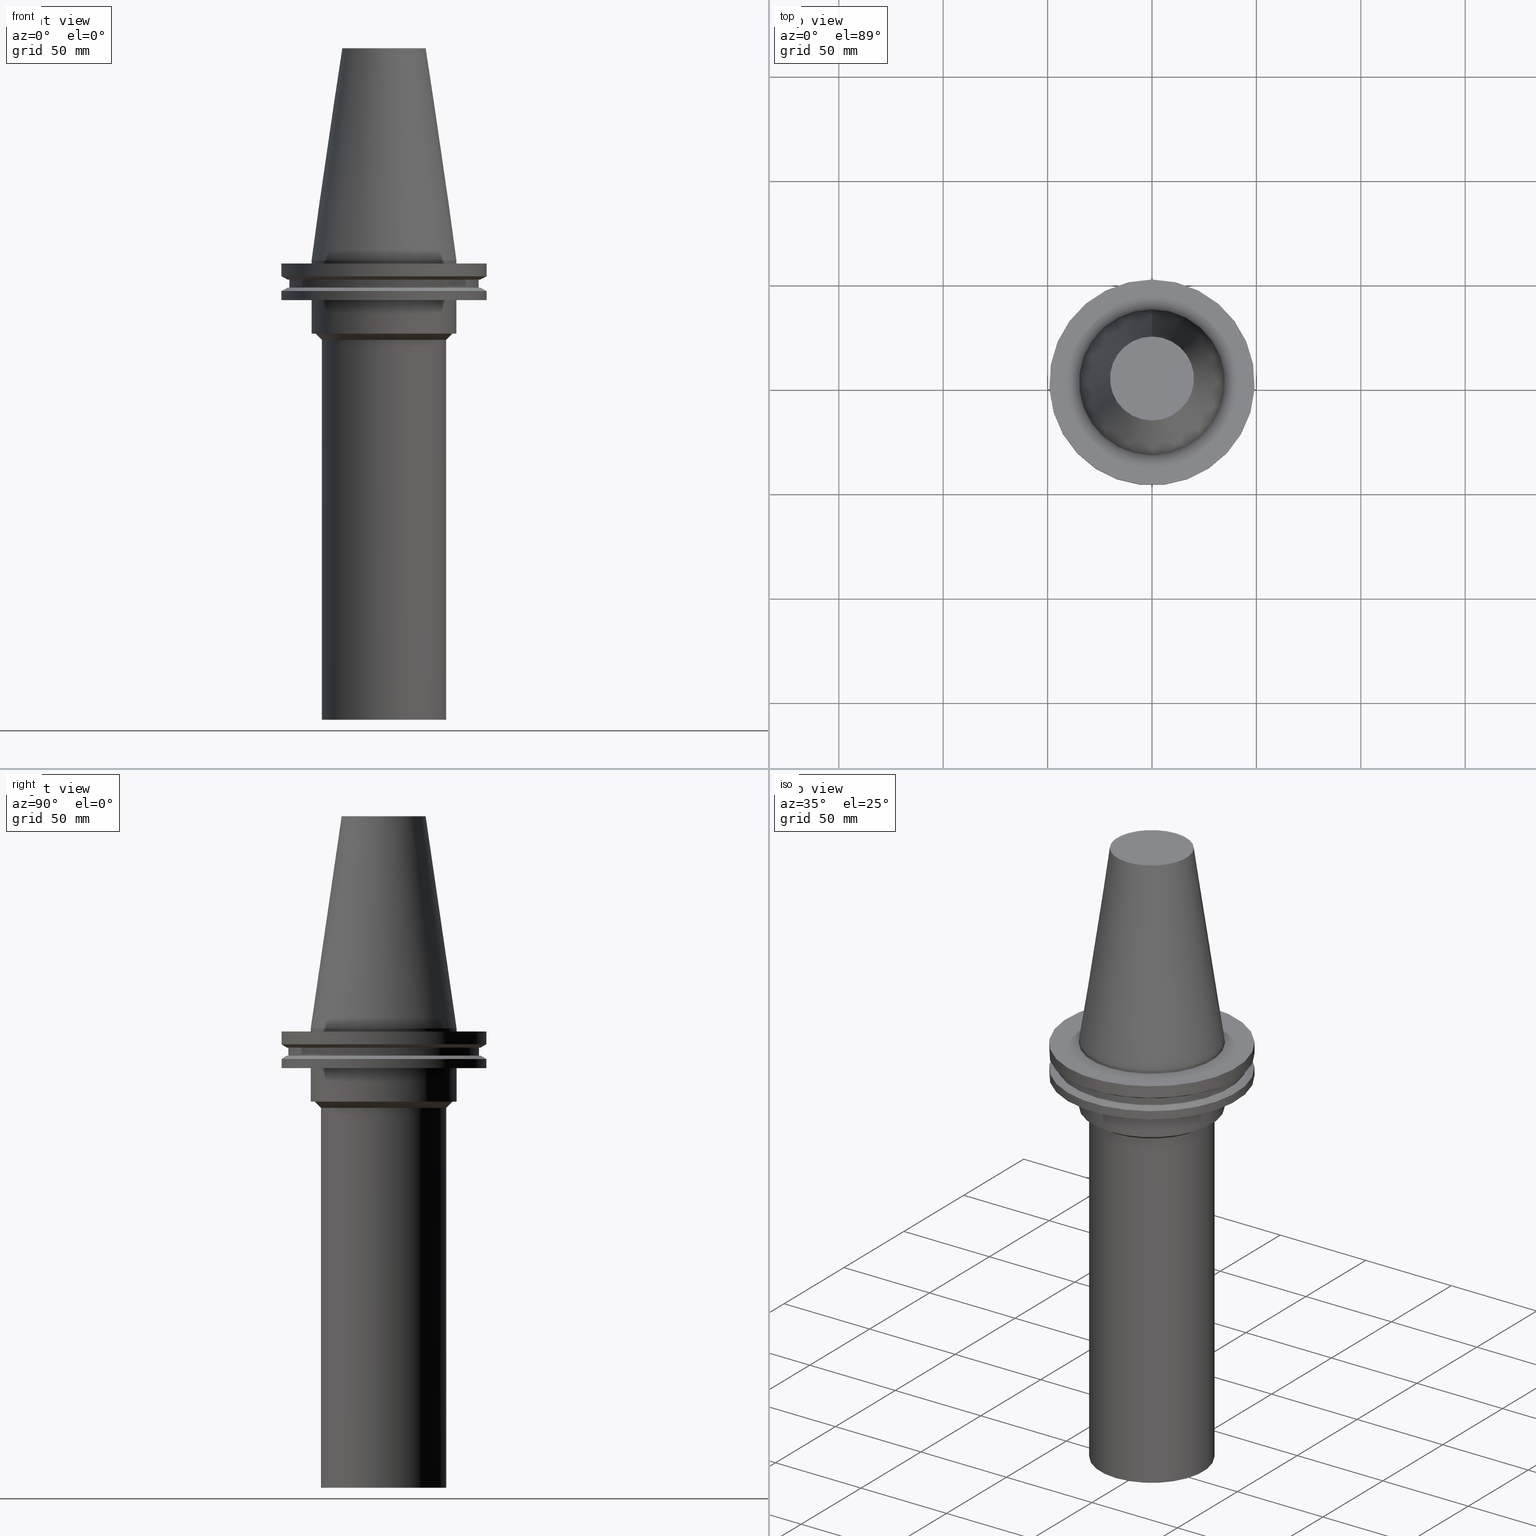
[diagram: canonical four-view strip — front | top / right | iso, engineering-drawing reading convention]
A machine part, canonical four-view strip (front | top / right | iso — engineering-drawing reading convention). The complete STEP part file that produces these views, byte-faithful:
ISO-10303-21;
HEADER;
FILE_DESCRIPTION((''),'1');
FILE_NAME('V:/90_\X2\53D65F9730C730FC30BF\X0\/00_\X2\6DE18DEF30C730FC30BF\X0\/ALL/BCV-BKUS\X2\FF76FF80FF9BFF78FF9E752852A05DE556F3\X0\201801/BCV50-SDF/BCV50-SDF36-60-220.stp','2018-02-01T01:13:41',(''),(''),'Spatial Interop R21 SP3','Kubotek KeyCreator 2011 V10.0.2 (22737)',' ');
FILE_SCHEMA(('automotive_design'));
ENDSEC;
DATA;
#1=MECHANICAL_DESIGN_GEOMETRIC_PRESENTATION_REPRESENTATION(' ',(#10,#11,#12,#13,#14,#15,#16,#17,#18,#19,#20,#21,#22,#23,#24,#25,#26,#27,#28,#29,#30,#31,#32,#33,#34,#35,#36,#37,#38,#39,#40,#41,#42,#43),#6);
#2=PRODUCT_DEFINITION_CONTEXT('',#44,'design');
#3=APPLICATION_PROTOCOL_DEFINITION('INTERNATIONAL STANDARD','automotive_design',1994,#44);
#4=PRODUCT_CATEGORY_RELATIONSHIP('NONE','NONE',#45,#46);
#5=SHAPE_DEFINITION_REPRESENTATION(#47,#48);
#6= (GEOMETRIC_REPRESENTATION_CONTEXT(3)GLOBAL_UNCERTAINTY_ASSIGNED_CONTEXT((#51))GLOBAL_UNIT_ASSIGNED_CONTEXT((#53,#54,#55))REPRESENTATION_CONTEXT('NONE','WORKSPACE'));
#10=STYLED_ITEM('',(#57),#58);
#11=STYLED_ITEM('',(#59,#60),#61);
#12=STYLED_ITEM('',(#62,#63),#64);
#13=STYLED_ITEM('',(#65,#66),#67);
#14=STYLED_ITEM('',(#68,#69),#70);
#15=STYLED_ITEM('',(#71,#72),#73);
#16=STYLED_ITEM('',(#74,#75),#76);
#17=STYLED_ITEM('',(#77),#78);
#18=STYLED_ITEM('',(#79),#80);
#19=STYLED_ITEM('',(#81,#82),#83);
#20=STYLED_ITEM('',(#84,#85),#86);
#21=STYLED_ITEM('',(#87,#88),#89);
#22=STYLED_ITEM('',(#90),#91);
#23=STYLED_ITEM('',(#92,#93),#94);
#24=STYLED_ITEM('',(#95),#96);
#25=STYLED_ITEM('',(#97),#98);
#26=STYLED_ITEM('',(#99,#100),#101);
#27=STYLED_ITEM('',(#102),#103);
#28=STYLED_ITEM('',(#104),#105);
#29=STYLED_ITEM('',(#106),#107);
#30=STYLED_ITEM('',(#108),#109);
#31=STYLED_ITEM('',(#110,#111),#112);
#32=STYLED_ITEM('',(#113),#114);
#33=STYLED_ITEM('',(#115,#116),#117);
#34=STYLED_ITEM('',(#118,#119),#120);
#35=STYLED_ITEM('',(#121,#122),#123);
#36=STYLED_ITEM('',(#124,#125),#126);
#37=STYLED_ITEM('',(#127,#128),#129);
#38=STYLED_ITEM('',(#130),#131);
#39=STYLED_ITEM('',(#132),#133);
#40=STYLED_ITEM('',(#134),#135);
#41=STYLED_ITEM('',(#136),#137);
#42=STYLED_ITEM('',(#138,#139),#140);
#43=STYLED_ITEM('',(#141),#142);
#44=APPLICATION_CONTEXT(' ');
#45=PRODUCT_CATEGORY('part','NONE');
#46=PRODUCT_RELATED_PRODUCT_CATEGORY('detail',' ',(#143));
#47=PRODUCT_DEFINITION_SHAPE('NONE','NONE',#144);
#48=ADVANCED_BREP_SHAPE_REPRESENTATION('Unnamed[1]',(#76,#145),#6);
#51=UNCERTAINTY_MEASURE_WITH_UNIT(LENGTH_MEASURE(1.0E-006),#53,'','');
#53= (CONVERSION_BASED_UNIT('MILLIMETRE',#148)LENGTH_UNIT()NAMED_UNIT(#151));
#54= (NAMED_UNIT(#153)PLANE_ANGLE_UNIT()SI_UNIT($,.RADIAN.));
#55= (NAMED_UNIT(#153)SOLID_ANGLE_UNIT()SI_UNIT($,.STERADIAN.));
#57=PRESENTATION_STYLE_ASSIGNMENT((#159));
#58=EDGE_CURVE('Unnamed[1]',#160,#160,#161,.T.);
#59=PRESENTATION_STYLE_ASSIGNMENT((#162));
#60=PRESENTATION_STYLE_ASSIGNMENT((#163));
#61=ADVANCED_FACE('Unnamed[1]',(#164,#165),#166,.T.);
#62=PRESENTATION_STYLE_ASSIGNMENT((#167));
#63=PRESENTATION_STYLE_ASSIGNMENT((#168));
#64=ADVANCED_FACE('Unnamed[1]',(#169,#170),#171,.T.);
#65=PRESENTATION_STYLE_ASSIGNMENT((#172));
#66=PRESENTATION_STYLE_ASSIGNMENT((#173));
#67=ADVANCED_FACE('Unnamed[1]',(#174),#175,.T.);
#68=PRESENTATION_STYLE_ASSIGNMENT((#176));
#69=PRESENTATION_STYLE_ASSIGNMENT((#177));
#70=ADVANCED_FACE('Unnamed[1]',(#178,#179),#180,.T.);
#71=PRESENTATION_STYLE_ASSIGNMENT((#181));
#72=PRESENTATION_STYLE_ASSIGNMENT((#182));
#73=ADVANCED_FACE('Unnamed[1]',(#183,#184),#185,.T.);
#74=PRESENTATION_STYLE_ASSIGNMENT((#186));
#75=PRESENTATION_STYLE_ASSIGNMENT((#187));
#76=MANIFOLD_SOLID_BREP('Unnamed[1]',#188);
#77=PRESENTATION_STYLE_ASSIGNMENT((#189));
#78=EDGE_CURVE('Unnamed[1]',#190,#190,#191,.T.);
#79=PRESENTATION_STYLE_ASSIGNMENT((#192));
#80=EDGE_CURVE('Unnamed[1]',#193,#193,#194,.T.);
#81=PRESENTATION_STYLE_ASSIGNMENT((#195));
#82=PRESENTATION_STYLE_ASSIGNMENT((#196));
#83=ADVANCED_FACE('Unnamed[1]',(#197,#198),#199,.T.);
#84=PRESENTATION_STYLE_ASSIGNMENT((#200));
#85=PRESENTATION_STYLE_ASSIGNMENT((#201));
#86=ADVANCED_FACE('Unnamed[1]',(#202),#203,.T.);
#87=PRESENTATION_STYLE_ASSIGNMENT((#204));
#88=PRESENTATION_STYLE_ASSIGNMENT((#205));
#89=ADVANCED_FACE('Unnamed[1]',(#206,#207),#208,.T.);
#90=PRESENTATION_STYLE_ASSIGNMENT((#209));
#91=EDGE_CURVE('Unnamed[1]',#210,#210,#211,.T.);
#92=PRESENTATION_STYLE_ASSIGNMENT((#212));
#93=PRESENTATION_STYLE_ASSIGNMENT((#213));
#94=ADVANCED_FACE('Unnamed[1]',(#214,#215),#216,.T.);
#95=PRESENTATION_STYLE_ASSIGNMENT((#217));
#96=EDGE_CURVE('Unnamed[1]',#218,#218,#219,.T.);
#97=PRESENTATION_STYLE_ASSIGNMENT((#220));
#98=EDGE_CURVE('Unnamed[1]',#221,#221,#222,.T.);
#99=PRESENTATION_STYLE_ASSIGNMENT((#223));
#100=PRESENTATION_STYLE_ASSIGNMENT((#224));
#101=ADVANCED_FACE('Unnamed[1]',(#225,#226),#227,.T.);
#102=PRESENTATION_STYLE_ASSIGNMENT((#228));
#103=EDGE_CURVE('Unnamed[1]',#229,#229,#230,.T.);
#104=PRESENTATION_STYLE_ASSIGNMENT((#231));
#105=EDGE_CURVE('Unnamed[1]',#232,#232,#233,.T.);
#106=PRESENTATION_STYLE_ASSIGNMENT((#234));
#107=EDGE_CURVE('Unnamed[1]',#235,#235,#236,.T.);
#108=PRESENTATION_STYLE_ASSIGNMENT((#237));
#109=EDGE_CURVE('Unnamed[1]',#238,#238,#239,.T.);
#110=PRESENTATION_STYLE_ASSIGNMENT((#240));
#111=PRESENTATION_STYLE_ASSIGNMENT((#241));
#112=ADVANCED_FACE('Unnamed[1]',(#242,#243),#244,.T.);
#113=PRESENTATION_STYLE_ASSIGNMENT((#245));
#114=EDGE_CURVE('Unnamed[1]',#246,#246,#247,.T.);
#115=PRESENTATION_STYLE_ASSIGNMENT((#248));
#116=PRESENTATION_STYLE_ASSIGNMENT((#249));
#117=ADVANCED_FACE('Unnamed[1]',(#250,#251),#252,.T.);
#118=PRESENTATION_STYLE_ASSIGNMENT((#253));
#119=PRESENTATION_STYLE_ASSIGNMENT((#254));
#120=ADVANCED_FACE('Unnamed[1]',(#255,#256),#257,.T.);
#121=PRESENTATION_STYLE_ASSIGNMENT((#258));
#122=PRESENTATION_STYLE_ASSIGNMENT((#259));
#123=ADVANCED_FACE('Unnamed[1]',(#260,#261),#262,.T.);
#124=PRESENTATION_STYLE_ASSIGNMENT((#263));
#125=PRESENTATION_STYLE_ASSIGNMENT((#264));
#126=ADVANCED_FACE('Unnamed[1]',(#265,#266),#267,.T.);
#127=PRESENTATION_STYLE_ASSIGNMENT((#268));
#128=PRESENTATION_STYLE_ASSIGNMENT((#269));
#129=ADVANCED_FACE('Unnamed[1]',(#270,#271),#272,.T.);
#130=PRESENTATION_STYLE_ASSIGNMENT((#273));
#131=EDGE_CURVE('Unnamed[1]',#274,#274,#275,.T.);
#132=PRESENTATION_STYLE_ASSIGNMENT((#276));
#133=EDGE_CURVE('Unnamed[1]',#277,#277,#278,.T.);
#134=PRESENTATION_STYLE_ASSIGNMENT((#279));
#135=EDGE_CURVE('Unnamed[1]',#280,#280,#281,.T.);
#136=PRESENTATION_STYLE_ASSIGNMENT((#282));
#137=EDGE_CURVE('Unnamed[1]',#283,#283,#284,.T.);
#138=PRESENTATION_STYLE_ASSIGNMENT((#285));
#139=PRESENTATION_STYLE_ASSIGNMENT((#286));
#140=ADVANCED_FACE('Unnamed[1]',(#287,#288),#289,.T.);
#141=PRESENTATION_STYLE_ASSIGNMENT((#290));
#142=EDGE_CURVE('Unnamed[1]',#291,#291,#292,.T.);
#143=PRODUCT('Unnamed[1]','Unnamed[1]','PART-Unnamed[1]-DESC',(#293));
#144=PRODUCT_DEFINITION('NONE','NONE',#294,#2);
#145=AXIS2_PLACEMENT_3D('',#295,#296,#297);
#148=LENGTH_MEASURE_WITH_UNIT(LENGTH_MEASURE(1.0),#298);
#151=DIMENSIONAL_EXPONENTS(1.0,0.0,0.0,0.0,0.0,0.0,0.0);
#153=DIMENSIONAL_EXPONENTS(0.0,0.0,0.0,0.0,0.0,0.0,0.0);
#159=CURVE_STYLE('',#299,POSITIVE_LENGTH_MEASURE(1000.0),#300);
#160=VERTEX_POINT('',#301);
#161=CIRCLE('',#302,46.432558453852);
#162=SURFACE_STYLE_USAGE(.BOTH.,#303);
#163=CURVE_STYLE('',#304,POSITIVE_LENGTH_MEASURE(1000.0),#305);
#164=FACE_BOUND('',#306,.T.);
#165=FACE_BOUND('',#307,.T.);
#166=CYLINDRICAL_SURFACE('',#308,34.925);
#167=SURFACE_STYLE_USAGE(.BOTH.,#309);
#168=CURVE_STYLE('',#310,POSITIVE_LENGTH_MEASURE(1000.0),#311);
#169=FACE_BOUND('',#312,.T.);
#170=FACE_BOUND('',#313,.T.);
#171=CYLINDRICAL_SURFACE('',#314,49.2124999999999);
#172=SURFACE_STYLE_USAGE(.BOTH.,#315);
#173=CURVE_STYLE('',#316,POSITIVE_LENGTH_MEASURE(1000.0),#317);
#174=FACE_OUTER_BOUND('',#318,.T.);
#175=PLANE('',#319);
#176=SURFACE_STYLE_USAGE(.BOTH.,#320);
#177=CURVE_STYLE('',#321,POSITIVE_LENGTH_MEASURE(1000.0),#322);
#178=FACE_OUTER_BOUND('',#323,.T.);
#179=FACE_BOUND('',#324,.T.);
#180=PLANE('',#325);
#181=SURFACE_STYLE_USAGE(.BOTH.,#326);
#182=CURVE_STYLE('',#327,POSITIVE_LENGTH_MEASURE(1000.0),#328);
#183=FACE_BOUND('',#329,.T.);
#184=FACE_BOUND('',#330,.T.);
#185=CONICAL_SURFACE('',#331,47.822529226926,1.04719755119663);
#186=SURFACE_STYLE_USAGE(.BOTH.,#332);
#187=CURVE_STYLE('',#333,POSITIVE_LENGTH_MEASURE(1000.0),#334);
#188=CLOSED_SHELL('',(#86,#120,#61,#70,#83,#73,#140,#117,#123,#89,#64,#129,#126,#112,#101,#94,#67));
#189=CURVE_STYLE('',#335,POSITIVE_LENGTH_MEASURE(1000.0),#336);
#190=VERTEX_POINT('',#337);
#191=CIRCLE('',#338,29.9999999999994);
#192=CURVE_STYLE('',#339,POSITIVE_LENGTH_MEASURE(1000.0),#340);
#193=VERTEX_POINT('',#341);
#194=CIRCLE('',#342,29.9999999999999);
#195=SURFACE_STYLE_USAGE(.BOTH.,#343);
#196=CURVE_STYLE('',#344,POSITIVE_LENGTH_MEASURE(1000.0),#345);
#197=FACE_BOUND('',#346,.T.);
#198=FACE_BOUND('',#347,.T.);
#199=CYLINDRICAL_SURFACE('',#348,49.2125);
#200=SURFACE_STYLE_USAGE(.BOTH.,#349);
#201=CURVE_STYLE('',#350,POSITIVE_LENGTH_MEASURE(1000.0),#351);
#202=FACE_OUTER_BOUND('',#352,.T.);
#203=PLANE('',#353);
#204=SURFACE_STYLE_USAGE(.BOTH.,#354);
#205=CURVE_STYLE('',#355,POSITIVE_LENGTH_MEASURE(1000.0),#356);
#206=FACE_BOUND('',#357,.T.);
#207=FACE_BOUND('',#358,.T.);
#208=CONICAL_SURFACE('',#359,47.8225292269259,1.04719755119659);
#209=CURVE_STYLE('',#360,POSITIVE_LENGTH_MEASURE(1000.0),#361);
#210=VERTEX_POINT('',#362);
#211=CIRCLE('',#363,34.925);
#212=SURFACE_STYLE_USAGE(.BOTH.,#364);
#213=CURVE_STYLE('',#365,POSITIVE_LENGTH_MEASURE(1000.0),#366);
#214=FACE_BOUND('',#367,.T.);
#215=FACE_BOUND('',#368,.T.);
#216=CYLINDRICAL_SURFACE('',#369,29.9999999999996);
#217=CURVE_STYLE('',#370,POSITIVE_LENGTH_MEASURE(1000.0),#371);
#218=VERTEX_POINT('',#372);
#219=CIRCLE('',#373,20.1083333333333);
#220=CURVE_STYLE('',#374,POSITIVE_LENGTH_MEASURE(1000.0),#375);
#221=VERTEX_POINT('',#376);
#222=CIRCLE('',#377,32.9999999999992);
#223=SURFACE_STYLE_USAGE(.BOTH.,#378);
#224=CURVE_STYLE('',#379,POSITIVE_LENGTH_MEASURE(1000.0),#380);
#225=FACE_BOUND('',#381,.T.);
#226=FACE_BOUND('',#382,.T.);
#227=CONICAL_SURFACE('',#383,31.4999999999993,0.785398163397449);
#228=CURVE_STYLE('',#384,POSITIVE_LENGTH_MEASURE(1000.0),#385);
#229=VERTEX_POINT('',#386);
#230=CIRCLE('',#387,45.6449999999999);
#231=CURVE_STYLE('',#388,POSITIVE_LENGTH_MEASURE(1000.0),#389);
#232=VERTEX_POINT('',#390);
#233=CIRCLE('',#391,49.2124999999999);
#234=CURVE_STYLE('',#392,POSITIVE_LENGTH_MEASURE(1000.0),#393);
#235=VERTEX_POINT('',#394);
#236=CIRCLE('',#395,49.2125000000001);
#237=CURVE_STYLE('',#396,POSITIVE_LENGTH_MEASURE(1000.0),#397);
#238=VERTEX_POINT('',#398);
#239=CIRCLE('',#399,49.2124999999999);
#240=SURFACE_STYLE_USAGE(.BOTH.,#400);
#241=CURVE_STYLE('',#401,POSITIVE_LENGTH_MEASURE(1000.0),#402);
#242=FACE_BOUND('',#403,.T.);
#243=FACE_OUTER_BOUND('',#404,.T.);
#244=PLANE('',#405);
#245=CURVE_STYLE('',#406,POSITIVE_LENGTH_MEASURE(1000.0),#407);
#246=VERTEX_POINT('',#408);
#247=CIRCLE('',#409,45.6449999999999);
#248=SURFACE_STYLE_USAGE(.BOTH.,#410);
#249=CURVE_STYLE('',#411,POSITIVE_LENGTH_MEASURE(1000.0),#412);
#250=FACE_BOUND('',#413,.T.);
#251=FACE_BOUND('',#414,.T.);
#252=CYLINDRICAL_SURFACE('',#415,45.6449999999999);
#253=SURFACE_STYLE_USAGE(.BOTH.,#416);
#254=CURVE_STYLE('',#417,POSITIVE_LENGTH_MEASURE(1000.0),#418);
#255=FACE_BOUND('',#419,.T.);
#256=FACE_BOUND('',#420,.T.);
#257=CONICAL_SURFACE('',#421,27.5166666666667,0.144812498238939);
#258=SURFACE_STYLE_USAGE(.BOTH.,#422);
#259=CURVE_STYLE('',#423,POSITIVE_LENGTH_MEASURE(1000.0),#424);
#260=FACE_OUTER_BOUND('',#425,.T.);
#261=FACE_BOUND('',#426,.T.);
#262=PLANE('',#427);
#263=SURFACE_STYLE_USAGE(.BOTH.,#428);
#264=CURVE_STYLE('',#429,POSITIVE_LENGTH_MEASURE(1000.0),#430);
#265=FACE_BOUND('',#431,.T.);
#266=FACE_BOUND('',#432,.T.);
#267=CYLINDRICAL_SURFACE('',#433,34.925);
#268=SURFACE_STYLE_USAGE(.BOTH.,#434);
#269=CURVE_STYLE('',#435,POSITIVE_LENGTH_MEASURE(1000.0),#436);
#270=FACE_BOUND('',#437,.T.);
#271=FACE_OUTER_BOUND('',#438,.T.);
#272=PLANE('',#439);
#273=CURVE_STYLE('',#440,POSITIVE_LENGTH_MEASURE(1000.0),#441);
#274=VERTEX_POINT('',#442);
#275=CIRCLE('',#443,34.925);
#276=CURVE_STYLE('',#444,POSITIVE_LENGTH_MEASURE(1000.0),#445);
#277=VERTEX_POINT('',#446);
#278=CIRCLE('',#447,49.2124999999999);
#279=CURVE_STYLE('',#448,POSITIVE_LENGTH_MEASURE(1000.0),#449);
#280=VERTEX_POINT('',#450);
#281=CIRCLE('',#451,46.4325584538519);
#282=CURVE_STYLE('',#452,POSITIVE_LENGTH_MEASURE(1000.0),#453);
#283=VERTEX_POINT('',#454);
#284=CIRCLE('',#455,34.925);
#285=SURFACE_STYLE_USAGE(.BOTH.,#456);
#286=CURVE_STYLE('',#457,POSITIVE_LENGTH_MEASURE(1000.0),#458);
#287=FACE_BOUND('',#459,.T.);
#288=FACE_OUTER_BOUND('',#460,.T.);
#289=PLANE('',#461);
#290=CURVE_STYLE('',#462,POSITIVE_LENGTH_MEASURE(1000.0),#463);
#291=VERTEX_POINT('',#464);
#292=CIRCLE('',#465,34.925);
#293=PRODUCT_CONTEXT('',#44,'mechanical');
#294=PRODUCT_DEFINITION_FORMATION_WITH_SPECIFIED_SOURCE(' ','NONE',#143,.NOT_KNOWN.);
#295=CARTESIAN_POINT('',(0.0,0.0,0.0));
#296=DIRECTION('',(0.0,0.0,1.0));
#297=DIRECTION('',(1.0,0.0,0.0));
#298= (NAMED_UNIT(#151)LENGTH_UNIT()SI_UNIT(.MILLI.,.METRE.));
#299=DRAUGHTING_PRE_DEFINED_CURVE_FONT('continuous');
#300=COLOUR_RGB('',0.0,1.0,0.0);
#301=CARTESIAN_POINT('',(5.63337527607778E-016,46.432558453852,-9.19999999999993));
#302=AXIS2_PLACEMENT_3D('',#467,#468,#469);
#303=SURFACE_SIDE_STYLE('',(#470));
#304=DRAUGHTING_PRE_DEFINED_CURVE_FONT('continuous');
#305=COLOUR_RGB('',0.0,1.0,0.0);
#306=EDGE_LOOP('',(#471));
#307=EDGE_LOOP('',(#472));
#308=AXIS2_PLACEMENT_3D('',#473,#474,#475);
#309=SURFACE_SIDE_STYLE('',(#476));
#310=DRAUGHTING_PRE_DEFINED_CURVE_FONT('continuous');
#311=COLOUR_RGB('',0.0,1.0,0.0);
#312=EDGE_LOOP('',(#477));
#313=EDGE_LOOP('',(#478));
#314=AXIS2_PLACEMENT_3D('',#479,#480,#481);
#315=SURFACE_SIDE_STYLE('',(#482));
#316=DRAUGHTING_PRE_DEFINED_CURVE_FONT('continuous');
#317=COLOUR_RGB('',0.0,1.0,0.0);
#318=EDGE_LOOP('',(#483));
#319=AXIS2_PLACEMENT_3D('',#484,#485,#486);
#320=SURFACE_SIDE_STYLE('',(#487));
#321=DRAUGHTING_PRE_DEFINED_CURVE_FONT('continuous');
#322=COLOUR_RGB('',0.0,1.0,0.0);
#323=EDGE_LOOP('',(#488));
#324=EDGE_LOOP('',(#489));
#325=AXIS2_PLACEMENT_3D('',#490,#491,#492);
#326=SURFACE_SIDE_STYLE('',(#493));
#327=DRAUGHTING_PRE_DEFINED_CURVE_FONT('continuous');
#328=COLOUR_RGB('',0.0,1.0,0.0);
#329=EDGE_LOOP('',(#494));
#330=EDGE_LOOP('',(#495));
#331=AXIS2_PLACEMENT_3D('',#496,#497,#498);
#332=SURFACE_SIDE_STYLE('',(#499));
#333=DRAUGHTING_PRE_DEFINED_CURVE_FONT('continuous');
#334=COLOUR_RGB('',0.0,1.0,0.0);
#335=DRAUGHTING_PRE_DEFINED_CURVE_FONT('continuous');
#336=COLOUR_RGB('',0.0,1.0,0.0);
#337=CARTESIAN_POINT('',(2.32989053537783E-015,29.9999999999993,-38.0499999999998));
#338=AXIS2_PLACEMENT_3D('',#500,#501,#502);
#339=DRAUGHTING_PRE_DEFINED_CURVE_FONT('continuous');
#340=COLOUR_RGB('',0.0,1.0,0.0);
#341=CARTESIAN_POINT('',(1.34711147906209E-014,29.9999999999999,-220.0));
#342=AXIS2_PLACEMENT_3D('',#503,#504,#505);
#343=SURFACE_SIDE_STYLE('',(#506));
#344=DRAUGHTING_PRE_DEFINED_CURVE_FONT('continuous');
#345=COLOUR_RGB('',0.0,1.0,0.0);
#346=EDGE_LOOP('',(#507));
#347=EDGE_LOOP('',(#508));
#348=AXIS2_PLACEMENT_3D('',#509,#510,#511);
#349=SURFACE_SIDE_STYLE('',(#512));
#350=DRAUGHTING_PRE_DEFINED_CURVE_FONT('continuous');
#351=COLOUR_RGB('',0.0,1.0,0.0);
#352=EDGE_LOOP('',(#513));
#353=AXIS2_PLACEMENT_3D('',#514,#515,#516);
#354=SURFACE_SIDE_STYLE('',(#517));
#355=DRAUGHTING_PRE_DEFINED_CURVE_FONT('continuous');
#356=COLOUR_RGB('',0.0,1.0,0.0);
#357=EDGE_LOOP('',(#518));
#358=EDGE_LOOP('',(#519));
#359=AXIS2_PLACEMENT_3D('',#520,#521,#522);
#360=DRAUGHTING_PRE_DEFINED_CURVE_FONT('continuous');
#361=COLOUR_RGB('',0.0,1.0,0.0);
#362=CARTESIAN_POINT('',(9.18485099360511E-017,34.925,-1.5));
#363=AXIS2_PLACEMENT_3D('',#523,#524,#525);
#364=SURFACE_SIDE_STYLE('',(#526));
#365=DRAUGHTING_PRE_DEFINED_CURVE_FONT('continuous');
#366=COLOUR_RGB('',0.0,1.0,0.0);
#367=EDGE_LOOP('',(#527));
#368=EDGE_LOOP('',(#528));
#369=AXIS2_PLACEMENT_3D('',#529,#530,#531);
#370=DRAUGHTING_PRE_DEFINED_CURVE_FONT('continuous');
#371=COLOUR_RGB('',0.0,1.0,0.0);
#372=CARTESIAN_POINT('',(-6.22120573966855E-015,20.1083333333332,101.6));
#373=AXIS2_PLACEMENT_3D('',#532,#533,#534);
#374=DRAUGHTING_PRE_DEFINED_CURVE_FONT('continuous');
#375=COLOUR_RGB('',0.0,1.0,0.0);
#376=CARTESIAN_POINT('',(2.14619351550573E-015,32.9999999999992,-35.0499999999999));
#377=AXIS2_PLACEMENT_3D('',#535,#536,#537);
#378=SURFACE_SIDE_STYLE('',(#538));
#379=DRAUGHTING_PRE_DEFINED_CURVE_FONT('continuous');
#380=COLOUR_RGB('',0.0,1.0,0.0);
#381=EDGE_LOOP('',(#539));
#382=EDGE_LOOP('',(#540));
#383=AXIS2_PLACEMENT_3D('',#541,#542,#543);
#384=DRAUGHTING_PRE_DEFINED_CURVE_FONT('continuous');
#385=COLOUR_RGB('',0.0,1.0,0.0);
#386=CARTESIAN_POINT('',(7.98469713044071E-016,45.6449999999999,-13.04));
#387=AXIS2_PLACEMENT_3D('',#544,#545,#546);
#388=DRAUGHTING_PRE_DEFINED_CURVE_FONT('continuous');
#389=COLOUR_RGB('',0.0,1.0,0.0);
#390=CARTESIAN_POINT('',(8.96747618675648E-016,49.2124999999999,-14.645));
#391=AXIS2_PLACEMENT_3D('',#547,#548,#549);
#392=DRAUGHTING_PRE_DEFINED_CURVE_FONT('continuous');
#393=COLOUR_RGB('',0.0,1.0,0.0);
#394=CARTESIAN_POINT('',(4.65059621976208E-016,49.2125,-7.59500000000002));
#395=AXIS2_PLACEMENT_3D('',#550,#551,#552);
#396=DRAUGHTING_PRE_DEFINED_CURVE_FONT('continuous');
#397=COLOUR_RGB('',0.0,1.0,0.0);
#398=CARTESIAN_POINT('',(1.16647607618786E-015,49.2124999999999,-19.0500000000001));
#399=AXIS2_PLACEMENT_3D('',#553,#554,#555);
#400=SURFACE_SIDE_STYLE('',(#556));
#401=DRAUGHTING_PRE_DEFINED_CURVE_FONT('continuous');
#402=COLOUR_RGB('',0.0,1.0,0.0);
#403=EDGE_LOOP('',(#557));
#404=EDGE_LOOP('',(#558));
#405=AXIS2_PLACEMENT_3D('',#559,#560,#561);
#406=DRAUGHTING_PRE_DEFINED_CURVE_FONT('continuous');
#407=COLOUR_RGB('',0.0,1.0,0.0);
#408=CARTESIAN_POINT('',(5.63337527607778E-016,45.6449999999999,-9.19999999999993));
#409=AXIS2_PLACEMENT_3D('',#562,#563,#564);
#410=SURFACE_SIDE_STYLE('',(#565));
#411=DRAUGHTING_PRE_DEFINED_CURVE_FONT('continuous');
#412=COLOUR_RGB('',0.0,1.0,0.0);
#413=EDGE_LOOP('',(#566));
#414=EDGE_LOOP('',(#567));
#415=AXIS2_PLACEMENT_3D('',#568,#569,#570);
#416=SURFACE_SIDE_STYLE('',(#571));
#417=DRAUGHTING_PRE_DEFINED_CURVE_FONT('continuous');
#418=COLOUR_RGB('',0.0,1.0,0.0);
#419=EDGE_LOOP('',(#572));
#420=EDGE_LOOP('',(#573));
#421=AXIS2_PLACEMENT_3D('',#574,#575,#576);
#422=SURFACE_SIDE_STYLE('',(#577));
#423=DRAUGHTING_PRE_DEFINED_CURVE_FONT('continuous');
#424=COLOUR_RGB('',0.0,1.0,0.0);
#425=EDGE_LOOP('',(#578));
#426=EDGE_LOOP('',(#579));
#427=AXIS2_PLACEMENT_3D('',#580,#581,#582);
#428=SURFACE_SIDE_STYLE('',(#583));
#429=DRAUGHTING_PRE_DEFINED_CURVE_FONT('continuous');
#430=COLOUR_RGB('',0.0,1.0,0.0);
#431=EDGE_LOOP('',(#584));
#432=EDGE_LOOP('',(#585));
#433=AXIS2_PLACEMENT_3D('',#586,#587,#588);
#434=SURFACE_SIDE_STYLE('',(#589));
#435=DRAUGHTING_PRE_DEFINED_CURVE_FONT('continuous');
#436=COLOUR_RGB('',0.0,1.0,0.0);
#437=EDGE_LOOP('',(#590));
#438=EDGE_LOOP('',(#591));
#439=AXIS2_PLACEMENT_3D('',#592,#593,#594);
#440=DRAUGHTING_PRE_DEFINED_CURVE_FONT('continuous');
#441=COLOUR_RGB('',0.0,1.0,0.0);
#442=CARTESIAN_POINT('',(4.82986938111671E-029,34.925,-7.9153078510529E-013));
#443=AXIS2_PLACEMENT_3D('',#595,#596,#597);
#444=DRAUGHTING_PRE_DEFINED_CURVE_FONT('continuous');
#445=COLOUR_RGB('',0.0,1.0,0.0);
#446=CARTESIAN_POINT('',(9.18485099360509E-017,49.2124999999999,-1.49999999999999));
#447=AXIS2_PLACEMENT_3D('',#598,#599,#600);
#448=DRAUGHTING_PRE_DEFINED_CURVE_FONT('continuous');
#449=COLOUR_RGB('',0.0,1.0,0.0);
#450=CARTESIAN_POINT('',(7.98469713044071E-016,46.4325584538519,-13.04));
#451=AXIS2_PLACEMENT_3D('',#601,#602,#603);
#452=DRAUGHTING_PRE_DEFINED_CURVE_FONT('continuous');
#453=COLOUR_RGB('',0.0,1.0,0.0);
#454=CARTESIAN_POINT('',(2.14619351550573E-015,34.925,-35.0499999999999));
#455=AXIS2_PLACEMENT_3D('',#604,#605,#606);
#456=SURFACE_SIDE_STYLE('',(#607));
#457=DRAUGHTING_PRE_DEFINED_CURVE_FONT('continuous');
#458=COLOUR_RGB('',0.0,1.0,0.0);
#459=EDGE_LOOP('',(#608));
#460=EDGE_LOOP('',(#609));
#461=AXIS2_PLACEMENT_3D('',#610,#611,#612);
#462=DRAUGHTING_PRE_DEFINED_CURVE_FONT('continuous');
#463=COLOUR_RGB('',0.0,1.0,0.0);
#464=CARTESIAN_POINT('',(1.16647607618786E-015,34.925,-19.0500000000001));
#465=AXIS2_PLACEMENT_3D('',#613,#614,#615);
#467=CARTESIAN_POINT('',(5.6333752760778E-016,-2.01203812056214E-014,-9.19999999999996));
#468=DIRECTION('',(6.12323399573677E-017,4.32878246115728E-016,-1.0));
#469=DIRECTION('',(-3.13333006570687E-032,1.0,4.32878246115728E-016));
#470=SURFACE_STYLE_FILL_AREA(#616);
#471=ORIENTED_EDGE('',*,*,#91,.F.);
#472=ORIENTED_EDGE('',*,*,#131,.T.);
#473=CARTESIAN_POINT('',(4.59242549680501E-017,-2.37782023852996E-014,-0.750000000000398));
#474=DIRECTION('',(6.12323399573677E-017,4.32878246115797E-016,-1.0));
#475=DIRECTION('',(-3.13333006570805E-032,1.0,4.32878246115797E-016));
#476=SURFACE_STYLE_FILL_AREA(#617);
#477=ORIENTED_EDGE('',*,*,#109,.F.);
#478=ORIENTED_EDGE('',*,*,#105,.T.);
#479=CARTESIAN_POINT('',(1.03161184743175E-015,-1.68099448184509E-014,-16.8475000000001));
#480=DIRECTION('',(6.12323399573677E-017,4.32878246115774E-016,-1.0));
#481=DIRECTION('',(-3.13333006570746E-032,1.0,4.32878246115774E-016));
#482=SURFACE_STYLE_FILL_AREA(#618);
#483=ORIENTED_EDGE('',*,*,#80,.T.);
#484=CARTESIAN_POINT('',(1.34711147906209E-014,15.0,-220.0));
#485=DIRECTION('',(6.12323399573677E-017,1.22464679914735E-016,-1.0));
#486=DIRECTION('',(-1.23259516440783E-032,1.0,1.22464679914735E-016));
#487=SURFACE_STYLE_FILL_AREA(#619);
#488=ORIENTED_EDGE('',*,*,#133,.F.);
#489=ORIENTED_EDGE('',*,*,#91,.T.);
#490=CARTESIAN_POINT('',(9.1848509936051E-017,42.0687499999999,-1.49999999999999));
#491=DIRECTION('',(-6.12323399573677E-017,-1.22464679914735E-016,1.0));
#492=DIRECTION('',(1.23259516440783E-032,-1.0,-1.22464679914735E-016));
#493=SURFACE_STYLE_FILL_AREA(#620);
#494=ORIENTED_EDGE('',*,*,#58,.F.);
#495=ORIENTED_EDGE('',*,*,#107,.T.);
#496=CARTESIAN_POINT('',(5.14198574791995E-016,-2.04677659981293E-014,-8.39750000000001));
#497=DIRECTION('',(-6.12323399573677E-017,-4.32878246115819E-016,1.0));
#498=DIRECTION('',(-3.13333006570829E-032,1.0,4.32878246115819E-016));
#499=SURFACE_STYLE_FILL_AREA(#621);
#500=CARTESIAN_POINT('',(2.32989053537783E-015,-7.631843805181E-015,-38.0499999999998));
#501=DIRECTION('',(6.12323399573677E-017,4.32878246115826E-016,-1.0));
#502=DIRECTION('',(-3.13333006570825E-032,1.0,4.32878246115826E-016));
#503=CARTESIAN_POINT('',(1.34711147906209E-014,7.11303530755864E-014,-220.0));
#504=DIRECTION('',(6.12323399573676E-017,4.32878246115818E-016,-1.0));
#505=DIRECTION('',(-3.13333006570819E-032,1.0,4.32878246115818E-016));
#506=SURFACE_STYLE_FILL_AREA(#622);
#507=ORIENTED_EDGE('',*,*,#107,.F.);
#508=ORIENTED_EDGE('',*,*,#133,.T.);
#509=CARTESIAN_POINT('',(2.78454065956132E-016,-2.2134347245675E-014,-4.54750000000004));
#510=DIRECTION('',(6.12323399573677E-017,4.32878246115773E-016,-1.0));
#511=DIRECTION('',(-3.13333006570746E-032,1.0,4.32878246115773E-016));
#512=SURFACE_STYLE_FILL_AREA(#623);
#513=ORIENTED_EDGE('',*,*,#96,.F.);
#514=CARTESIAN_POINT('',(-6.22120573966855E-015,10.0541666666666,101.6));
#515=DIRECTION('',(-6.12323399573677E-017,-1.22464679914735E-016,1.0));
#516=DIRECTION('',(1.23259516440783E-032,-1.0,-1.22464679914735E-016));
#517=SURFACE_STYLE_FILL_AREA(#624);
#518=ORIENTED_EDGE('',*,*,#105,.F.);
#519=ORIENTED_EDGE('',*,*,#135,.T.);
#520=CARTESIAN_POINT('',(8.47608665859862E-016,-1.81107439480288E-014,-13.8425));
#521=DIRECTION('',(6.12323399573677E-017,4.3287824611582E-016,-1.0));
#522=DIRECTION('',(-3.1333300657083E-032,1.0,4.3287824611582E-016));
#523=CARTESIAN_POINT('',(9.18485099360515E-017,-2.34535437007129E-014,-1.5));
#524=DIRECTION('',(6.12323399573677E-017,4.32878246115797E-016,-1.0));
#525=DIRECTION('',(-3.13333006570806E-032,1.0,4.32878246115797E-016));
#526=SURFACE_STYLE_FILL_AREA(#625);
#527=ORIENTED_EDGE('',*,*,#80,.F.);
#528=ORIENTED_EDGE('',*,*,#78,.T.);
#529=CARTESIAN_POINT('',(7.90050266299936E-015,3.17492546352027E-014,-129.025));
#530=DIRECTION('',(6.12323399573677E-017,4.32878246115822E-016,-1.0));
#531=DIRECTION('',(-3.13333006570882E-032,1.0,4.32878246115822E-016));
#532=CARTESIAN_POINT('',(-6.22120573966855E-015,-6.80832908752505E-014,101.6));
#533=DIRECTION('',(6.12323399573677E-017,4.32878246115847E-016,-1.0));
#534=DIRECTION('',(-3.13333006570868E-032,1.0,4.32878246115847E-016));
#535=CARTESIAN_POINT('',(2.14619351550573E-015,-8.93047854352831E-015,-35.05));
#536=DIRECTION('',(6.12323399573677E-017,4.32878246115748E-016,-1.0));
#537=DIRECTION('',(-3.13333006570776E-032,1.0,4.32878246115748E-016));
#538=SURFACE_STYLE_FILL_AREA(#626);
#539=ORIENTED_EDGE('',*,*,#78,.F.);
#540=ORIENTED_EDGE('',*,*,#98,.T.);
#541=CARTESIAN_POINT('',(2.23804202544178E-015,-8.28116117435466E-015,-36.5499999999999));
#542=DIRECTION('',(-6.12323399573676E-017,-4.32878246115836E-016,1.0));
#543=DIRECTION('',(-3.13333006570799E-032,1.0,4.32878246115836E-016));
#544=CARTESIAN_POINT('',(7.98469713044072E-016,-1.84581287405368E-014,-13.04));
#545=DIRECTION('',(6.12323399573677E-017,4.32878246115772E-016,-1.0));
#546=DIRECTION('',(-3.13333006570683E-032,1.0,4.32878246115772E-016));
#547=CARTESIAN_POINT('',(8.9674761867565E-016,-1.77633591555209E-014,-14.645));
#548=DIRECTION('',(6.12323399573677E-017,4.32878246115774E-016,-1.0));
#549=DIRECTION('',(-3.13333006570746E-032,1.0,4.32878246115774E-016));
#550=CARTESIAN_POINT('',(4.65059621976211E-016,-2.08151507906372E-014,-7.59500000000006));
#551=DIRECTION('',(6.12323399573677E-017,4.32878246115773E-016,-1.0));
#552=DIRECTION('',(-3.13333006570745E-032,1.0,4.32878246115773E-016));
#553=CARTESIAN_POINT('',(1.16647607618786E-015,-1.58565304813808E-014,-19.0500000000001));
#554=DIRECTION('',(6.12323399573677E-017,4.32878246115774E-016,-1.0));
#555=DIRECTION('',(-3.13333006570746E-032,1.0,4.32878246115774E-016));
#556=SURFACE_STYLE_FILL_AREA(#627);
#557=ORIENTED_EDGE('',*,*,#98,.F.);
#558=ORIENTED_EDGE('',*,*,#137,.T.);
#559=CARTESIAN_POINT('',(2.14619351550573E-015,33.9624999999996,-35.0499999999999));
#560=DIRECTION('',(6.12323399573677E-017,1.22464679914735E-016,-1.0));
#561=DIRECTION('',(-1.23259516440783E-032,1.0,1.22464679914735E-016));
#562=CARTESIAN_POINT('',(5.63337527607778E-016,-2.01203812056214E-014,-9.19999999999993));
#563=DIRECTION('',(6.12323399573677E-017,4.32878246115772E-016,-1.0));
#564=DIRECTION('',(-3.13333006570683E-032,1.0,4.32878246115772E-016));
#565=SURFACE_STYLE_FILL_AREA(#628);
#566=ORIENTED_EDGE('',*,*,#103,.F.);
#567=ORIENTED_EDGE('',*,*,#114,.T.);
#568=CARTESIAN_POINT('',(6.80903620325925E-016,-1.92892549730791E-014,-11.1199999999999));
#569=DIRECTION('',(6.12323399573677E-017,4.32878246115772E-016,-1.0));
#570=DIRECTION('',(-3.13333006570683E-032,1.0,4.32878246115772E-016));
#571=SURFACE_STYLE_FILL_AREA(#629);
#572=ORIENTED_EDGE('',*,*,#131,.F.);
#573=ORIENTED_EDGE('',*,*,#96,.T.);
#574=CARTESIAN_POINT('',(-3.11060286983425E-015,-4.60930759725683E-014,50.7999999999996));
#575=DIRECTION('',(6.12323399573677E-017,4.32878246115815E-016,-1.0));
#576=DIRECTION('',(-3.13333006570796E-032,1.0,4.32878246115815E-016));
#577=SURFACE_STYLE_FILL_AREA(#630);
#578=ORIENTED_EDGE('',*,*,#135,.F.);
#579=ORIENTED_EDGE('',*,*,#103,.T.);
#580=CARTESIAN_POINT('',(7.98469713044071E-016,46.0387792269259,-13.04));
#581=DIRECTION('',(-6.12323399573677E-017,-1.22464679914735E-016,1.0));
#582=DIRECTION('',(1.23259516440783E-032,-1.0,-1.22464679914735E-016));
#583=SURFACE_STYLE_FILL_AREA(#631);
#584=ORIENTED_EDGE('',*,*,#137,.F.);
#585=ORIENTED_EDGE('',*,*,#142,.T.);
#586=CARTESIAN_POINT('',(1.6563347958468E-015,-1.23935045124546E-014,-27.05));
#587=DIRECTION('',(6.12323399573677E-017,4.32878246115797E-016,-1.0));
#588=DIRECTION('',(-3.13333006570805E-032,1.0,4.32878246115797E-016));
#589=SURFACE_STYLE_FILL_AREA(#632);
#590=ORIENTED_EDGE('',*,*,#142,.F.);
#591=ORIENTED_EDGE('',*,*,#109,.T.);
#592=CARTESIAN_POINT('',(1.16647607618786E-015,42.06875,-19.0500000000001));
#593=DIRECTION('',(6.12323399573677E-017,1.22464679914735E-016,-1.0));
#594=DIRECTION('',(-1.23259516440783E-032,1.0,1.22464679914735E-016));
#595=CARTESIAN_POINT('',(4.87291776723366E-029,-2.41028610698862E-014,-7.95807864051312E-013));
#596=DIRECTION('',(6.12323399573677E-017,4.32878246115797E-016,-1.0));
#597=DIRECTION('',(-3.13333006570805E-032,1.0,4.32878246115797E-016));
#598=CARTESIAN_POINT('',(9.18485099360532E-017,-2.34535437007129E-014,-1.50000000000003));
#599=DIRECTION('',(6.12323399573677E-017,4.32878246115774E-016,-1.0));
#600=DIRECTION('',(-3.13333006570746E-032,1.0,4.32878246115774E-016));
#601=CARTESIAN_POINT('',(7.98469713044074E-016,-1.84581287405367E-014,-13.04));
#602=DIRECTION('',(6.12323399573677E-017,4.32878246115729E-016,-1.0));
#603=DIRECTION('',(-3.13333006570765E-032,1.0,4.32878246115729E-016));
#604=CARTESIAN_POINT('',(2.14619351550573E-015,-8.93047854352831E-015,-35.05));
#605=DIRECTION('',(6.12323399573677E-017,4.32878246115797E-016,-1.0));
#606=DIRECTION('',(-3.13333006570805E-032,1.0,4.32878246115797E-016));
#607=SURFACE_STYLE_FILL_AREA(#633);
#608=ORIENTED_EDGE('',*,*,#114,.F.);
#609=ORIENTED_EDGE('',*,*,#58,.T.);
#610=CARTESIAN_POINT('',(5.63337527607778E-016,46.0387792269259,-9.19999999999993));
#611=DIRECTION('',(6.12323399573677E-017,1.22464679914735E-016,-1.0));
#612=DIRECTION('',(-1.23259516440783E-032,1.0,1.22464679914735E-016));
#613=CARTESIAN_POINT('',(1.16647607618786E-015,-1.58565304813808E-014,-19.0500000000001));
#614=DIRECTION('',(6.12323399573677E-017,4.32878246115797E-016,-1.0));
#615=DIRECTION('',(-3.13333006570805E-032,1.0,4.32878246115797E-016));
#616=FILL_AREA_STYLE('',(#634));
#617=FILL_AREA_STYLE('',(#635));
#618=FILL_AREA_STYLE('',(#636));
#619=FILL_AREA_STYLE('',(#637));
#620=FILL_AREA_STYLE('',(#638));
#621=FILL_AREA_STYLE('',(#639));
#622=FILL_AREA_STYLE('',(#640));
#623=FILL_AREA_STYLE('',(#641));
#624=FILL_AREA_STYLE('',(#642));
#625=FILL_AREA_STYLE('',(#643));
#626=FILL_AREA_STYLE('',(#644));
#627=FILL_AREA_STYLE('',(#645));
#628=FILL_AREA_STYLE('',(#646));
#629=FILL_AREA_STYLE('',(#647));
#630=FILL_AREA_STYLE('',(#648));
#631=FILL_AREA_STYLE('',(#649));
#632=FILL_AREA_STYLE('',(#650));
#633=FILL_AREA_STYLE('',(#651));
#634=FILL_AREA_STYLE_COLOUR('',#652);
#635=FILL_AREA_STYLE_COLOUR('',#653);
#636=FILL_AREA_STYLE_COLOUR('',#654);
#637=FILL_AREA_STYLE_COLOUR('',#655);
#638=FILL_AREA_STYLE_COLOUR('',#656);
#639=FILL_AREA_STYLE_COLOUR('',#657);
#640=FILL_AREA_STYLE_COLOUR('',#658);
#641=FILL_AREA_STYLE_COLOUR('',#659);
#642=FILL_AREA_STYLE_COLOUR('',#660);
#643=FILL_AREA_STYLE_COLOUR('',#661);
#644=FILL_AREA_STYLE_COLOUR('',#662);
#645=FILL_AREA_STYLE_COLOUR('',#663);
#646=FILL_AREA_STYLE_COLOUR('',#664);
#647=FILL_AREA_STYLE_COLOUR('',#665);
#648=FILL_AREA_STYLE_COLOUR('',#666);
#649=FILL_AREA_STYLE_COLOUR('',#667);
#650=FILL_AREA_STYLE_COLOUR('',#668);
#651=FILL_AREA_STYLE_COLOUR('',#669);
#652=COLOUR_RGB('',0.0,1.0,0.0);
#653=COLOUR_RGB('',0.0,1.0,0.0);
#654=COLOUR_RGB('',0.0,1.0,0.0);
#655=COLOUR_RGB('',0.0,1.0,0.0);
#656=COLOUR_RGB('',0.0,1.0,0.0);
#657=COLOUR_RGB('',0.0,1.0,0.0);
#658=COLOUR_RGB('',0.0,1.0,0.0);
#659=COLOUR_RGB('',0.0,1.0,0.0);
#660=COLOUR_RGB('',0.0,1.0,0.0);
#661=COLOUR_RGB('',0.0,1.0,0.0);
#662=COLOUR_RGB('',0.0,1.0,0.0);
#663=COLOUR_RGB('',0.0,1.0,0.0);
#664=COLOUR_RGB('',0.0,1.0,0.0);
#665=COLOUR_RGB('',0.0,1.0,0.0);
#666=COLOUR_RGB('',0.0,1.0,0.0);
#667=COLOUR_RGB('',0.0,1.0,0.0);
#668=COLOUR_RGB('',0.0,1.0,0.0);
#669=COLOUR_RGB('',0.0,1.0,0.0);
ENDSEC;
END-ISO-10303-21;
